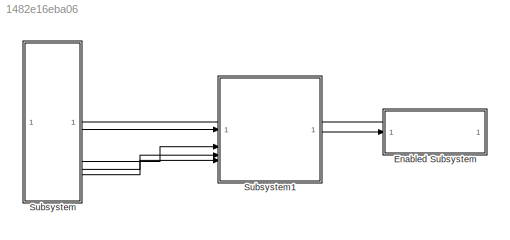
MODEL slx_1482e16eba06
KIND model
CONFIG AbsTol = auto
CONFIG EnableMultiTasking = on
CONFIG FixedStep = 0.002
CONFIG MaxStep = auto
CONFIG MinStep = auto
CONFIG RelTol = 1e-3
CONFIG SampleTimeConstraint = Unconstrained
CONFIG SolverName = FixedStepAuto
CONFIG StartTime = 0.0
CONFIG StopTime = inf
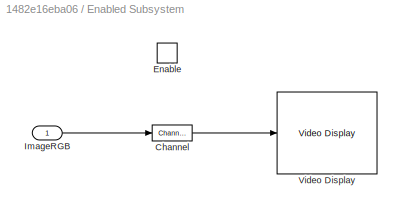
BLOCK [SubSystem] Enabled Subsystem
  TreatAsAtomicUnit = on
BLOCK [Reference] Enabled Subsystem/Channel  REF=quarc_library/Signal Routing/Channel
  SourceBlock = quarc_library/Signal Routing/Channel
  SourceProductName = QUARC Targets
  SourceType = Channel
BLOCK [EnablePort] Enabled Subsystem/Enable
  PropagateVarSize = During execution
BLOCK [Inport] Enabled Subsystem/ImageRGB
BLOCK [Reference] Enabled Subsystem/Video Display  REF=quarc_library/Multimedia/Video Display
  SourceBlock = quarc_library/Multimedia/Video Display
  SourceProductName = QUARC Targets
  SourceType = Video Display
  Tag = Ex7_CSI_Camera_ImageStitching/Enabled\nSubsystem/Video Display
  UserDataPersistent = on
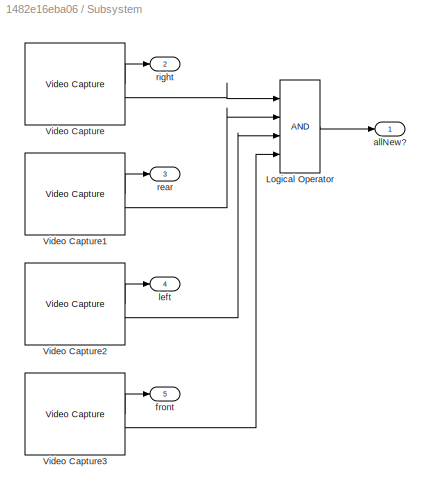
BLOCK [SubSystem] Subsystem
BLOCK [Logic] Subsystem/Logical Operator
  AllPortsSameDT = off
  Inputs = 4
  OutDataTypeStr = boolean
BLOCK [Reference] Subsystem/Video Capture  REF=quarc_library/Multimedia/Video Capture
  SourceBlock = quarc_library/Multimedia/Video Capture
  SourceProductName = QUARC Targets
  SourceType = Video Capture
BLOCK [Reference] Subsystem/Video Capture1  REF=quarc_library/Multimedia/Video Capture
  SourceBlock = quarc_library/Multimedia/Video Capture
  SourceProductName = QUARC Targets
  SourceType = Video Capture
BLOCK [Reference] Subsystem/Video Capture2  REF=quarc_library/Multimedia/Video Capture
  SourceBlock = quarc_library/Multimedia/Video Capture
  SourceProductName = QUARC Targets
  SourceType = Video Capture
BLOCK [Reference] Subsystem/Video Capture3  REF=quarc_library/Multimedia/Video Capture
  SourceBlock = quarc_library/Multimedia/Video Capture
  SourceProductName = QUARC Targets
  SourceType = Video Capture
BLOCK [Outport] Subsystem/allNew?
BLOCK [Outport] Subsystem/front
  Port = 5
BLOCK [Outport] Subsystem/left
  Port = 4
BLOCK [Outport] Subsystem/rear
  Port = 3
BLOCK [Outport] Subsystem/right
  Port = 2
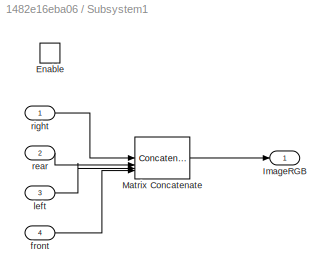
BLOCK [SubSystem] Subsystem1
BLOCK [EnablePort] Subsystem1/Enable
BLOCK [Outport] Subsystem1/ImageRGB
BLOCK [Concatenate] Subsystem1/Matrix Concatenate
  ConcatenateDimension = 2
  Mode = Multidimensional array
  NumInputs = 4
BLOCK [Inport] Subsystem1/front
  Port = 4
BLOCK [Inport] Subsystem1/left
  Port = 3
BLOCK [Inport] Subsystem1/rear
  Port = 2
BLOCK [Inport] Subsystem1/right
LINE Enabled Subsystem/Channel:1 -> Enabled Subsystem/Video Display:1
LINE Enabled Subsystem/ImageRGB:1 -> Enabled Subsystem/Channel:1
LINE Subsystem/Logical Operator:1 -> Subsystem/allNew?:1
LINE Subsystem/Video Capture1:1 -> Subsystem/rear:1
LINE Subsystem/Video Capture1:2 -> Subsystem/Logical Operator:2
LINE Subsystem/Video Capture2:1 -> Subsystem/left:1
LINE Subsystem/Video Capture2:2 -> Subsystem/Logical Operator:3
LINE Subsystem/Video Capture3:1 -> Subsystem/front:1
LINE Subsystem/Video Capture3:2 -> Subsystem/Logical Operator:4
LINE Subsystem/Video Capture:1 -> Subsystem/right:1
LINE Subsystem/Video Capture:2 -> Subsystem/Logical Operator:1
LINE Subsystem1/Matrix Concatenate:1 -> Subsystem1/ImageRGB:1
LINE Subsystem1/front:1 -> Subsystem1/Matrix Concatenate:4
LINE Subsystem1/left:1 -> Subsystem1/Matrix Concatenate:3
LINE Subsystem1/rear:1 -> Subsystem1/Matrix Concatenate:2
LINE Subsystem1/right:1 -> Subsystem1/Matrix Concatenate:1
LINE Subsystem1:1 -> Enabled Subsystem:1
NET Subsystem:1 -> Enabled Subsystem:enable, Subsystem1:enable
LINE Subsystem:2 -> Subsystem1:1
LINE Subsystem:3 -> Subsystem1:2
LINE Subsystem:4 -> Subsystem1:3
LINE Subsystem:5 -> Subsystem1:4
note: NET lines group one-source signal fan-out (src -> all destinations, sorted); 1:1 wires keep LINE
